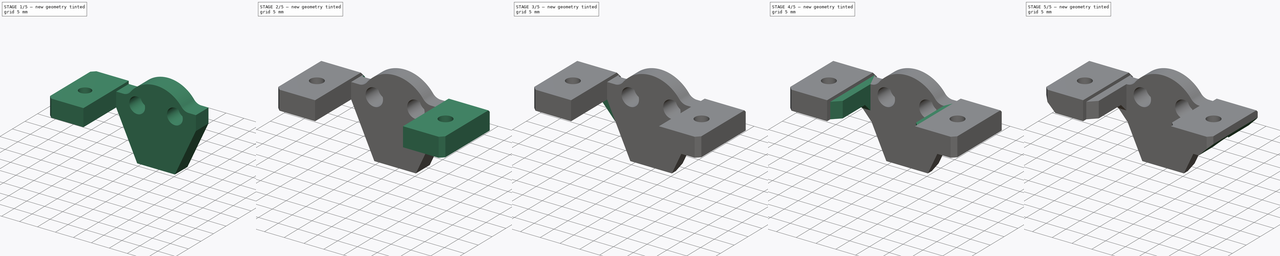
[diagram: build sequence overview — one tinted view per stage of 5, left to right]
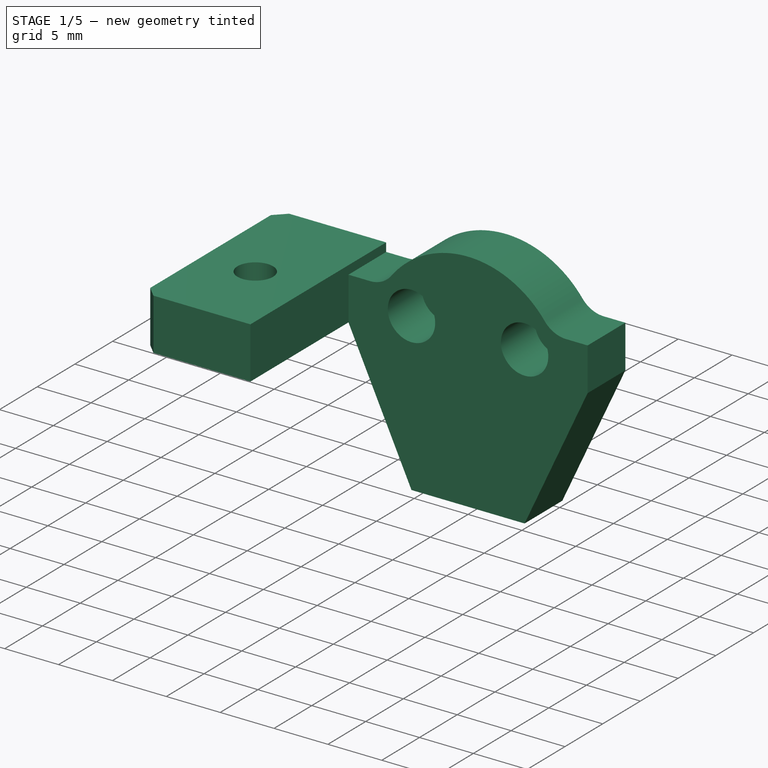
[diagram: stage 1 of 5 — iso view after this stage's code; geometry added in this stage tinted green]
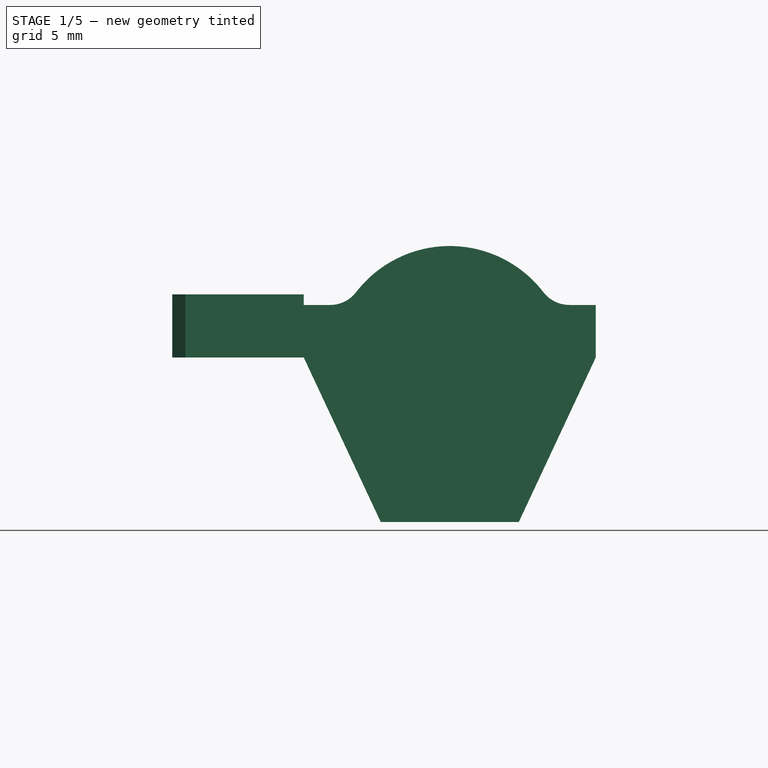
[diagram: stage 1 of 5 — front view after this stage's code; geometry added in this stage tinted green]
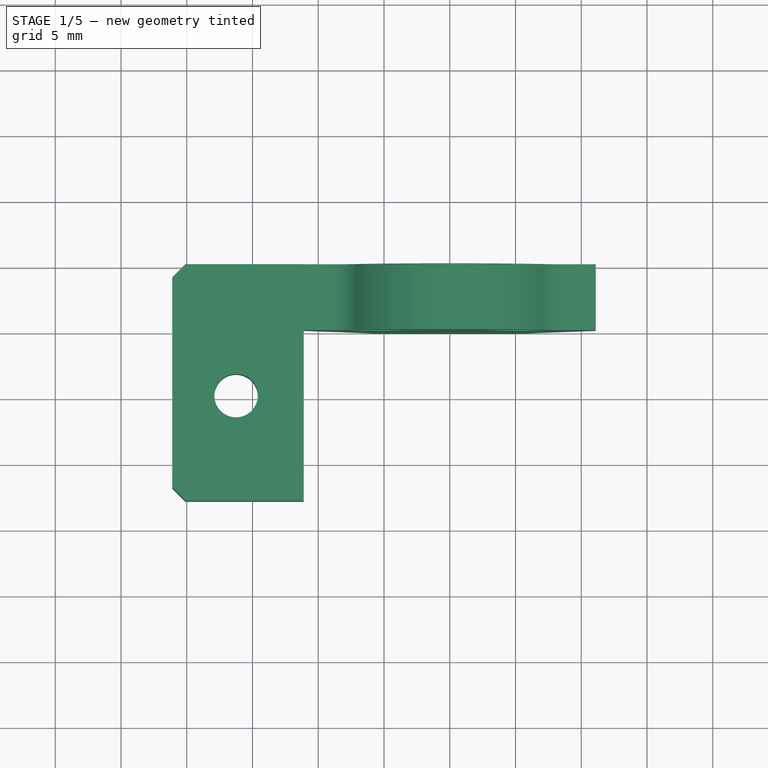
[diagram: stage 1 of 5 — top view after this stage's code; geometry added in this stage tinted green]
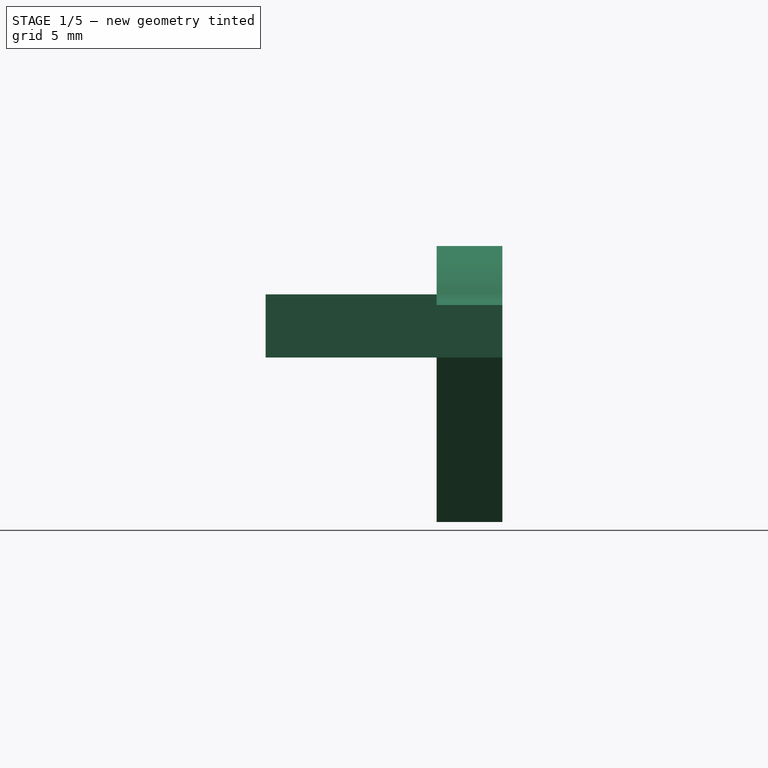
[diagram: stage 1 of 5 — right view after this stage's code; geometry added in this stage tinted green]
FCSTD DOCUMENT  (FreeCAD 0.21R33771 (Git))
Label: BTT-EDDY-Mount_for_XoL
License: All rights reserved
LicenseURL: https://en.wikipedia.org/wiki/All_rights_reserved
objects: Part::Feature×16, PartDesign::Chamfer×9, App::Part×5, Sketcher::SketchObject×5, PartDesign::Pad×3, PartDesign::Mirrored×3, PartDesign::Pocket×2, PartDesign::Body×1
note: 53 computed .brp shape members not serialized (recipe doc carries the construction recipe); baked Part::Feature solids carry a one-line shape summary decoded from their .brp

FEATURE [Part::Feature] Part__Feature034  label="btm"
  shape: bbox 14 x 1.587 x 14.2 mm, 14 faces, 0 solids (baked)
FEATURE [Part::Feature] Part__Feature340  label="connector"
  shape: bbox 9 x 7.046 x 3.859 mm, 103 faces, 0 solids (baked)
FEATURE [Part::Feature] Part__Feature818  label="housing"
  shape: bbox 18.1 x 33.79 x 18.3 mm, 1453 faces, 0 solids (baked)
FEATURE [App::Part] EDDY____________  label="BTT_Eddy-Probe"
  Group = -> [Part__Feature034,Part__Feature340,Part__Feature818]
  Origin = -> Origin
  Placement = pos=(74.38,3.82,19.7) rot=(-1,0,0;4.71239rad)
FEATURE [Part::Feature] Part__Feature841  label="Xol Carriage - Rear - MGN12H - 6MM"
  shape: bbox 45.28 x 17.22 x 50.76 mm, 524 faces (baked)
FEATURE [Part::Feature] Part__Feature843  label="Xol Carriage - Front - MGN12H - 6MM"
  Placement = pos=(0,10.04,0) rot=(0,0,1;0rad)
  shape: bbox 45.79 x 7.801 x 53.87 mm, 284 faces (baked)
FEATURE [Part::Feature] Part__Feature860  label="Dragon-Ace"
  Placement = pos=(-316.21,-16.48,-93.01) rot=(0,0.707107,-0.707107;3.14159rad)
  shape: bbox 61.95 x 45.95 x 49.98 mm, 715 faces (baked)
FEATURE [Part::Feature] Part__Feature863  label="heatsink"
  shape: bbox 22.31 x 22.31 x 26.4 mm, 387 faces (baked)
FEATURE [Part::Feature] Part__Feature864  label="block standoffs"
  shape: bbox 2.814 x 2.814 x 13.6 mm, 91 faces (baked)
FEATURE [Part::Feature] Part__Feature865  label="block standoffs001"
  shape: bbox 2.814 x 2.814 x 13.6 mm, 91 faces (baked)
FEATURE [Part::Feature] Part__Feature866  label="block standoffs002"
  shape: bbox 2.3 x 2.3 x 7.5 mm, 4 faces (baked)
FEATURE [Part::Feature] Part__Feature867  label="block standoffs003"
  shape: bbox 2.3 x 2.3 x 7.5 mm, 4 faces (baked)
FEATURE [Part::Feature] Part__Feature868  label="block standoffs004"
  shape: bbox 2.3 x 2.3 x 7.5 mm, 4 faces (baked)
FEATURE [Part::Feature] Part__Feature869  label="block standoffs005"
  shape: bbox 2.3 x 2.3 x 7.5 mm, 4 faces (baked)
FEATURE [App::Part] block_standoffs  label="block standoffs006"
  Group = -> [Part__Feature864,Part__Feature865,Part__Feature866,Part__Feature867,Part__Feature868,Part__Feature869]
  Origin = -> Origin002
FEATURE [Part::Feature] Part__Feature870  label="block"
  shape: bbox 23 x 16 x 12.14 mm, 80 faces (baked)
FEATURE [App::Part] block  label="block005"
  Group = -> [Part__Feature870]
  Origin = -> Origin003
FEATURE [Part::Feature] Part__Feature875  label="V6 Nozzle"
  Placement = pos=(-6.48856,0.0504844,83.56) rot=(-1,0,0;1.5708rad)
  shape: bbox 8.089 x 8.089 x 12.69 mm, 39 faces (baked)
FEATURE [Part::Feature] Part__Feature876  label="Heatbreak"
  shape: bbox 9 x 9 x 31.33 mm, 69 faces (baked)
FEATURE [App::Part] Heatbreak  label="Heatbreak003"
  Group = -> [Part__Feature876]
  Origin = -> Origin004
FEATURE [App::Part] Dragon_ST_v12  label="Dragon ST v12"
  Group = -> [Part__Feature863,block_standoffs,block,Part__Feature875,Heatbreak]
  Origin = -> Origin005
  Placement = pos=(-7.3e-15,-24.13,70.83) rot=(0.707107,0.707107,0;3.14159rad)
FEATURE [Sketcher::SketchObject] Sketch  label="side_sk"
  AttachmentOffset = pos=(0,0,14.3) rot=(0,0,1;0rad)
  FullyConstrained = true
  MapMode = 5
  Placement = pos=(0,0,14.3) rot=(0,0,1;0rad)
  Support = -> [XY_Plane006]
  sketch-geometry (7):
    g0: Circle CenterX=-16.25 CenterY=0 CenterZ=0 NormalX=0 NormalY=0 NormalZ=1 AngleXU=0 Radius=1.65
    g1: LineSegment StartX=-20.1 StartY=-8 StartZ=0 EndX=-11.1 EndY=-8 EndZ=0
    g2: LineSegment StartX=-11.1 StartY=-8 StartZ=0 EndX=-11.1 EndY=10 EndZ=0
    g3: LineSegment StartX=-11.1 StartY=10 StartZ=0 EndX=-20.1 EndY=10 EndZ=0
    g4: LineSegment StartX=-21.1 StartY=9 StartZ=0 EndX=-21.1 EndY=-7 EndZ=0
    g5: LineSegment StartX=-20.1 StartY=-8 StartZ=0 EndX=-21.1 EndY=-7 EndZ=0
    g6: LineSegment StartX=-21.1 StartY=9 StartZ=0 EndX=-20.1 EndY=10 EndZ=0
  constraints (21):
    c: Diameter(g0) = 3.3
    c: Coincident(g1,g2)
    c: Horizontal(g1)
    c: Horizontal(g3)
    c: Vertical(g4)
    c: DistanceY(g2,g2) = 18
    c: DistanceX(g0,g-1) = 16.25
    c: Perpendicular(g5,g6)
    c: Angle(g5,g-1) = 0.785398
    c: DistanceX(g5,g1) = 10
    c: Coincident(g1,g5)
    c: Coincident(g4,g5)
    c: Coincident(g4,g6)
    c: Coincident(g3,g6)
    c: Equal(g5,g6)
    c: Coincident(g3,g2)
    c: DistanceX(g2,g-1) = 11.1
    c: DistanceX(g4,g1) = 1
    c: PointOnObject(g0,g-1)
    c: Vertical(g2)
    c: DistanceY(g-1,g2) = 10
FEATURE [PartDesign::Pad] Pad  label="side_pd"
  Direction = (0,0,1)
  Length = 4.8
  Length2 = 10
  Profile = -> Sketch
  ReferenceAxis = -> Sketch [N_Axis]
  Reversed = true
  Type = 0
FEATURE [Sketcher::SketchObject] Sketch001  label="mid_sk"
  AttachmentOffset = pos=(0,0,-5) rot=(0,0,1;0rad)
  FullyConstrained = true
  MapMode = 5
  Placement = pos=(0,5,1.1e-15) rot=(1,0,0;1.5708rad)
  Support = -> [XZ_Plane006]
  sketch-geometry (10):
    g0: LineSegment StartX=-11.1 StartY=13.5 StartZ=0 EndX=-11.1 EndY=9.5 EndZ=0
    g1: LineSegment StartX=11.1 StartY=9.5 StartZ=0 EndX=11.1 EndY=13.5 EndZ=0
    g2: LineSegment StartX=11.1 StartY=13.5 StartZ=0 EndX=9.1 EndY=13.5 EndZ=0
    g3: LineSegment StartX=-11.1 StartY=13.5 StartZ=0 EndX=-9.1 EndY=13.5 EndZ=0
    g4: ArcOfCircle CenterX=2e-16 CenterY=9 CenterZ=0 NormalX=0 NormalY=0 NormalZ=1 AngleXU=0 Radius=8.98085 StartAngle=0.655696 EndAngle=2.4859
    g5: ArcOfCircle CenterX=9.1 CenterY=16 CenterZ=0 NormalX=0 NormalY=0 NormalZ=1 AngleXU=0 Radius=2.5 StartAngle=3.79729 EndAngle=4.71239
    g6: ArcOfCircle CenterX=-9.1 CenterY=16 CenterZ=0 NormalX=0 NormalY=0 NormalZ=1 AngleXU=0 Radius=2.5 StartAngle=4.71239 EndAngle=5.62749
    g7: LineSegment StartX=11.1 StartY=9.5 StartZ=0 EndX=5.25 EndY=-3 EndZ=0
    g8: LineSegment StartX=-11.1 StartY=9.5 StartZ=0 EndX=-5.25 EndY=-3 EndZ=0
    g9: LineSegment StartX=5.25 StartY=-3 StartZ=0 EndX=-5.25 EndY=-3 EndZ=0
  constraints (25):
    c: Symmetric(g0,g1,g-2)
    c: Coincident(g2,g1)
    c: Horizontal(g2)
    c: Coincident(g3,g0)
    c: Horizontal(g3)
    c: Tangent(g4,g5) = 1.5708
    c: Tangent(g2,g5) = 1.5708
    c: Tangent(g4,g6) = 1.5708
    c: Tangent(g3,g6) = -1.5708
    c: Symmetric(g4,g4,g-2)
    c: DistanceX(g0,g-1) = 11.1
    c: DistanceX(g3,g3) = 2
    c: Diameter(g6) = 5
    c: DistanceY(g-1,g0) = 13.5
    c: DistanceY(g-1,g4) = 9
    c: Symmetric(g1,g0,g-2)
    c: Vertical(g1)
    c: Coincident(g7,g1)
    c: Coincident(g8,g0)
    c: Symmetric(g8,g7,g-2)
    c: Coincident(g9,g7)
    c: Coincident(g9,g8)
    c: DistanceY(g8,g-1) = 3
    c: DistanceX(g9,g9) = 10.5
    c: DistanceY(g1,g1) = 4
FEATURE [PartDesign::Pad] Pad001  label="mid_pd"
  BaseFeature = -> Pad
  Direction = (0,-1,2e-16)
  Length = 5
  Length2 = 10
  Profile = -> Sketch001
  ReferenceAxis = -> Sketch001 [N_Axis]
  Reversed = true
  Type = 0
FEATURE [Sketcher::SketchObject] Sketch002
  AttachmentOffset = pos=(0,0,-5) rot=(0,0,1;0rad)
  FullyConstrained = true
  MapMode = 5
  Placement = pos=(0,5,1.1e-15) rot=(1,0,0;1.5708rad)
  Support = -> [XZ_Plane006]
  sketch-geometry (2):
    g0: Circle CenterX=-5.25 CenterY=11.6 CenterZ=0 NormalX=0 NormalY=0 NormalZ=1 AngleXU=0 Radius=2.2
    g1: Circle CenterX=5.25 CenterY=11.6 CenterZ=0 NormalX=0 NormalY=0 NormalZ=1 AngleXU=0 Radius=2.2
  constraints (5):
    c: Symmetric(g1,g0,g-2)
    c: DistanceX(g0,g1) = 10.5
    c: Equal(g0,g1)
    c: Diameter(g0) = 4.4
    c: DistanceY(g-1,g1) = 11.6
FEATURE [PartDesign::Pocket] Pocket
  BaseFeature = -> Pad001
  Direction = (0,1,2e-16)
  Length = 4.5
  Length2 = 5
  Profile = -> Sketch002
  ReferenceAxis = -> Sketch002 [N_Axis]
  Type = 0
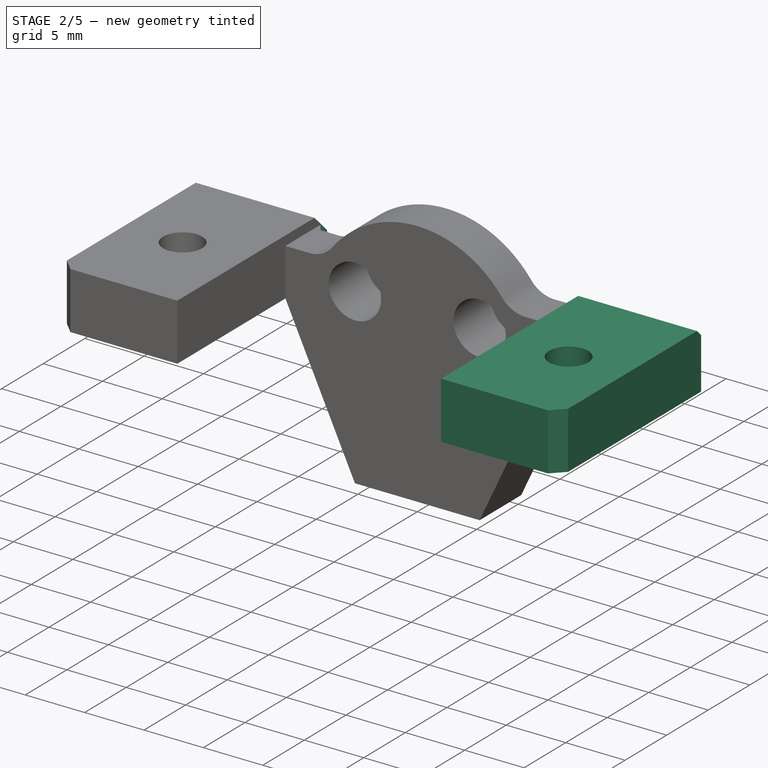
[diagram: stage 2 of 5 — iso view after this stage's code; geometry added in this stage tinted green]
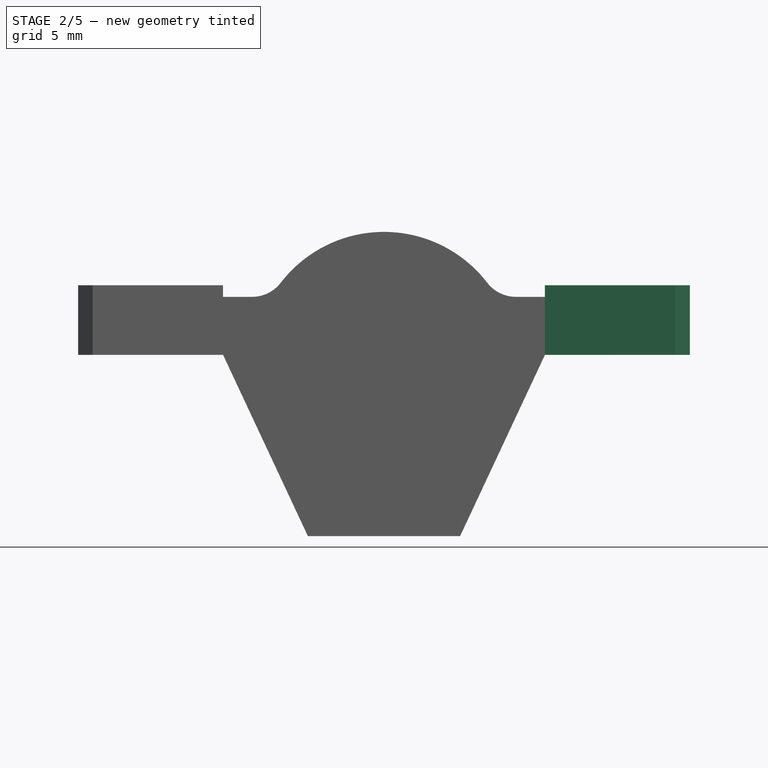
[diagram: stage 2 of 5 — front view after this stage's code; geometry added in this stage tinted green]
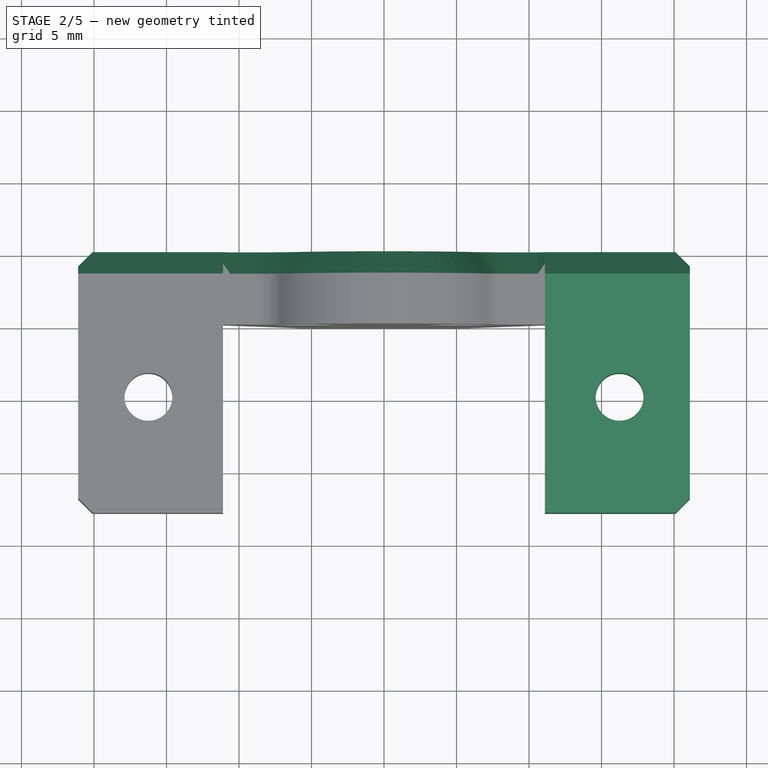
[diagram: stage 2 of 5 — top view after this stage's code; geometry added in this stage tinted green]
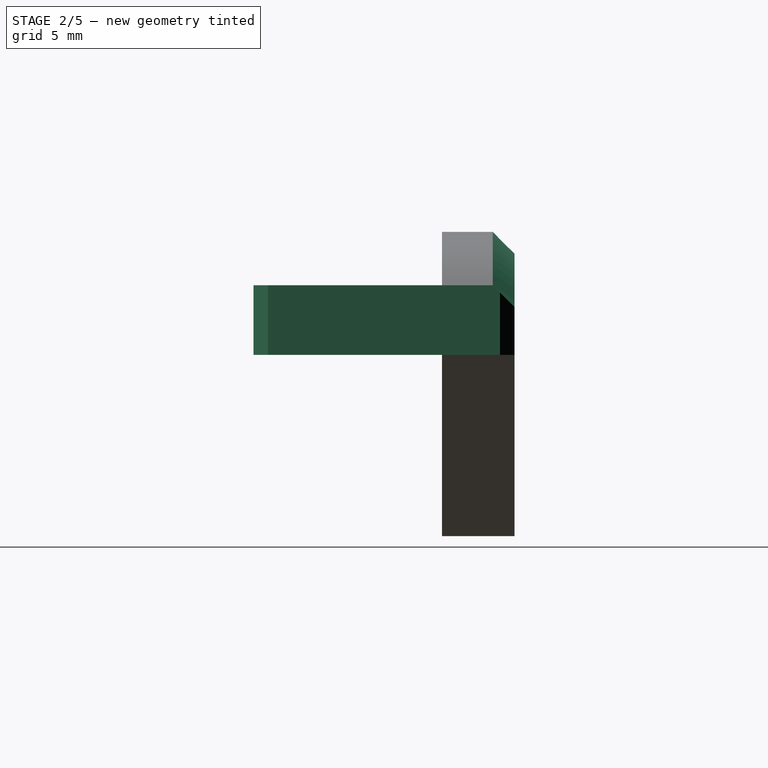
[diagram: stage 2 of 5 — right view after this stage's code; geometry added in this stage tinted green]
FEATURE [PartDesign::Mirrored] Mirrored
  BaseFeature = -> Pocket
  MirrorPlane = -> Sketch [V_Axis]
  Originals = -> [Pad]
FEATURE [PartDesign::Chamfer] Chamfer
  Angle = 45
  Base = -> Mirrored [Edge35]
  BaseFeature = -> Mirrored
  ChamferType = 0
  FlipDirection = false
  Size = 1.5
  Size2 = 1
  SupportTransform = false
  UseAllEdges = false
FEATURE [PartDesign::Chamfer] Chamfer001
  Angle = 45
  Base = -> Chamfer [Edge72,Edge41]
  BaseFeature = -> Chamfer
  ChamferType = 0
  FlipDirection = false
  Size = 1.5
  Size2 = 1
  SupportTransform = false
  UseAllEdges = false
FEATURE [PartDesign::Chamfer] Chamfer002
  Angle = 45
  Base = -> Chamfer001 [Edge3,Edge64]
  BaseFeature = -> Chamfer001
  ChamferType = 0
  FlipDirection = false
  Size = 0.5
  Size2 = 1
  SupportTransform = false
  UseAllEdges = false
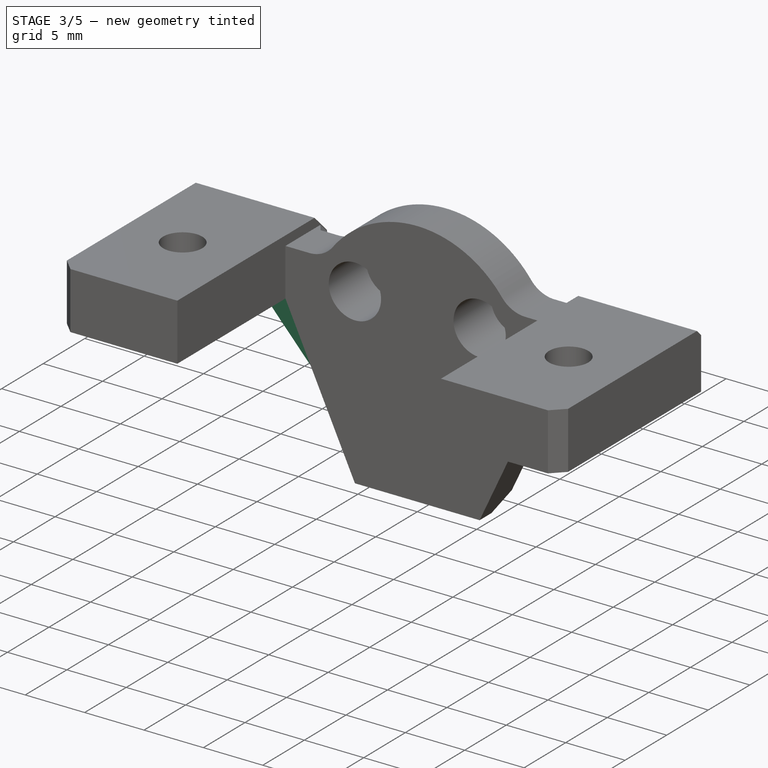
[diagram: stage 3 of 5 — iso view after this stage's code; geometry added in this stage tinted green]
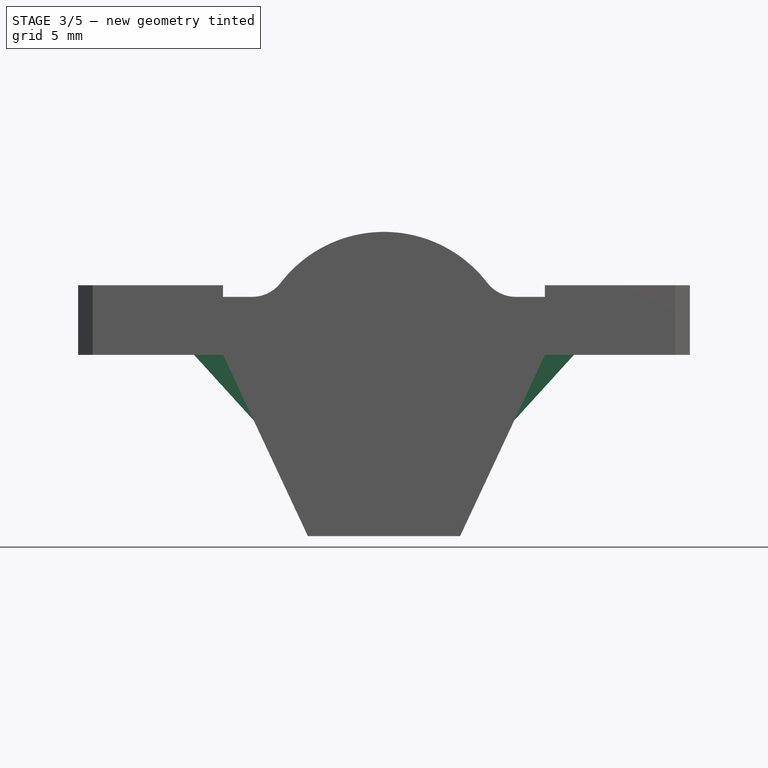
[diagram: stage 3 of 5 — front view after this stage's code; geometry added in this stage tinted green]
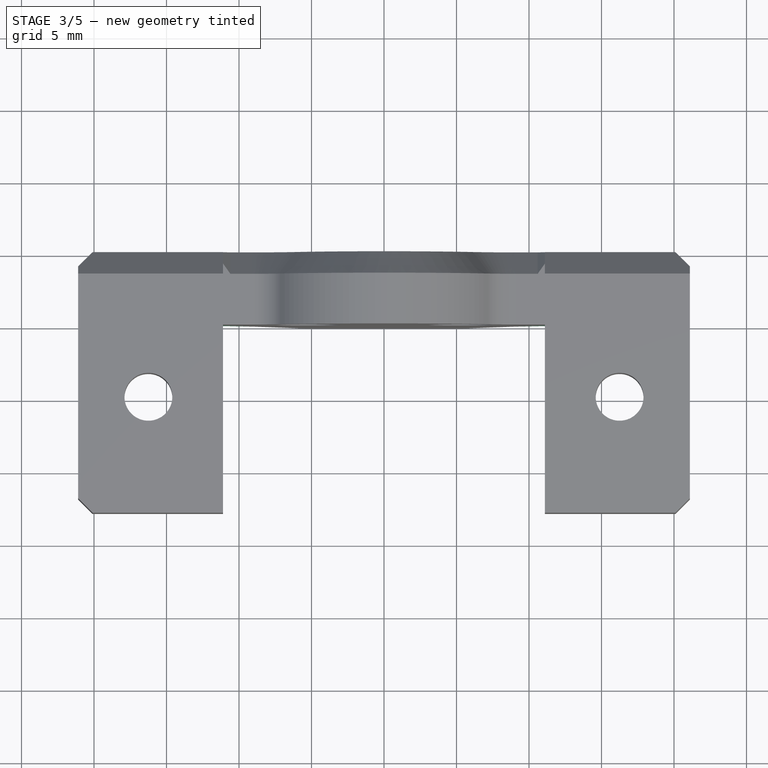
[diagram: stage 3 of 5 — top view after this stage's code; geometry added in this stage tinted green]
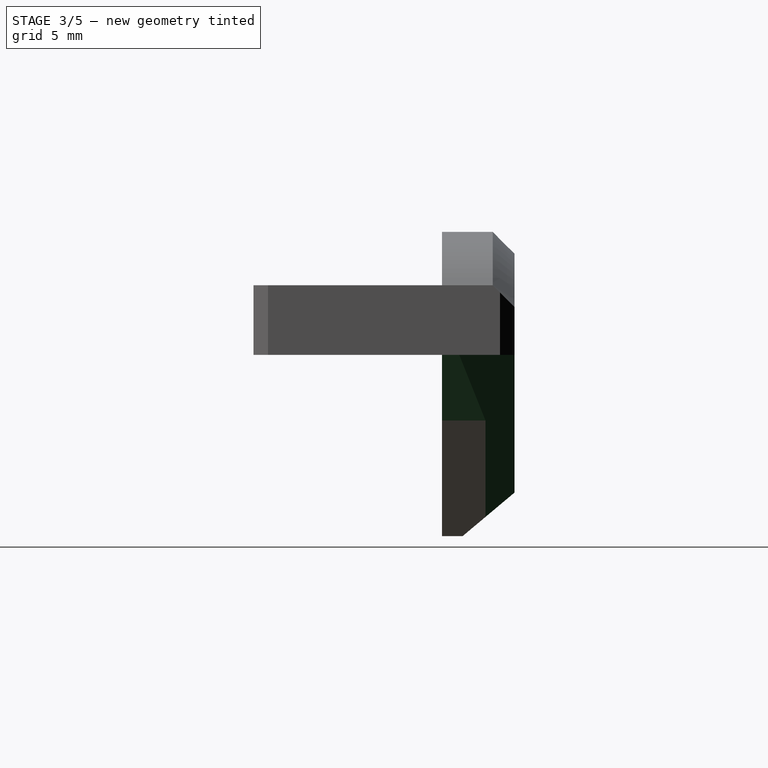
[diagram: stage 3 of 5 — right view after this stage's code; geometry added in this stage tinted green]
FEATURE [PartDesign::Chamfer] Chamfer003
  Angle = 45
  Base = -> Chamfer002 [Edge53,Edge49]
  BaseFeature = -> Chamfer002
  ChamferType = 0
  FlipDirection = false
  Size = 2
  Size2 = 1
  SupportTransform = false
  UseAllEdges = false
FEATURE [PartDesign::Chamfer] Chamfer004
  Angle = 50
  Base = -> Chamfer003 [Edge25]
  BaseFeature = -> Chamfer003
  ChamferType = 2
  FlipDirection = false
  Size = 3
  Size2 = 1
  SupportTransform = false
  UseAllEdges = false
FEATURE [PartDesign::Chamfer] Chamfer005
  Angle = 45
  Base = -> Chamfer004 [Edge48,Edge3]
  BaseFeature = -> Chamfer004
  ChamferType = 1
  FlipDirection = false
  Size = 5
  Size2 = 2
  SupportTransform = false
  UseAllEdges = false
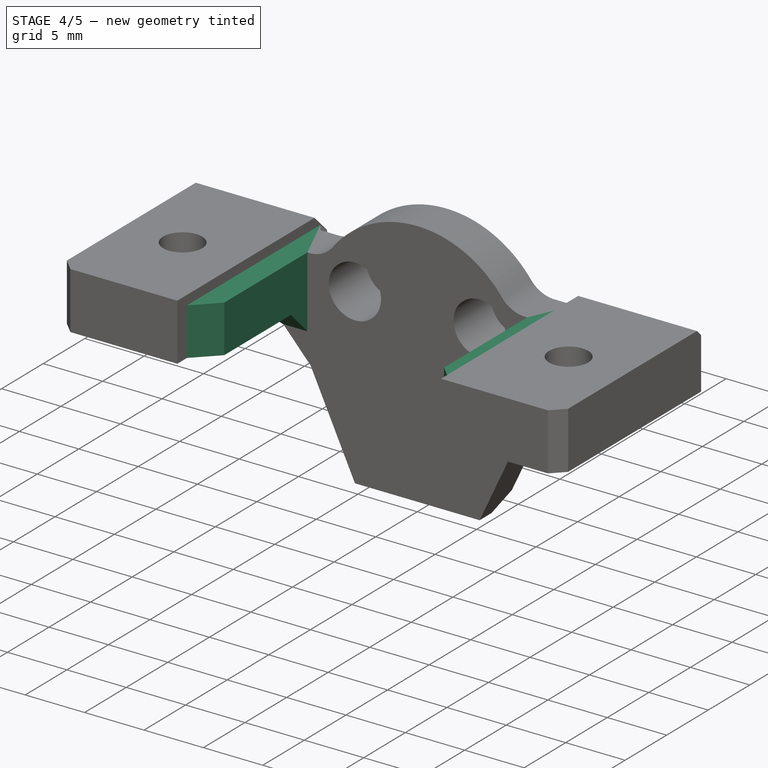
[diagram: stage 4 of 5 — iso view after this stage's code; geometry added in this stage tinted green]
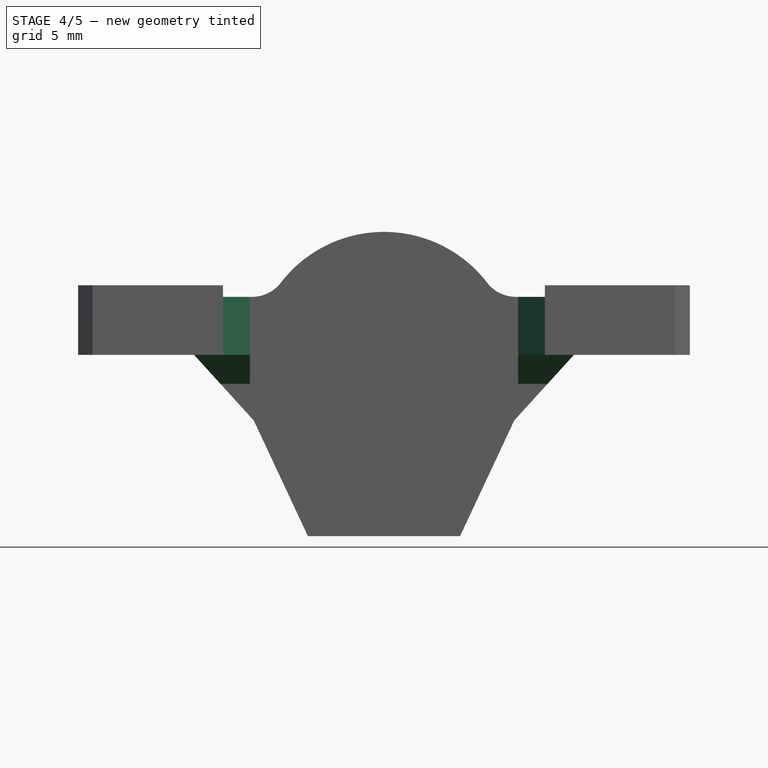
[diagram: stage 4 of 5 — front view after this stage's code; geometry added in this stage tinted green]
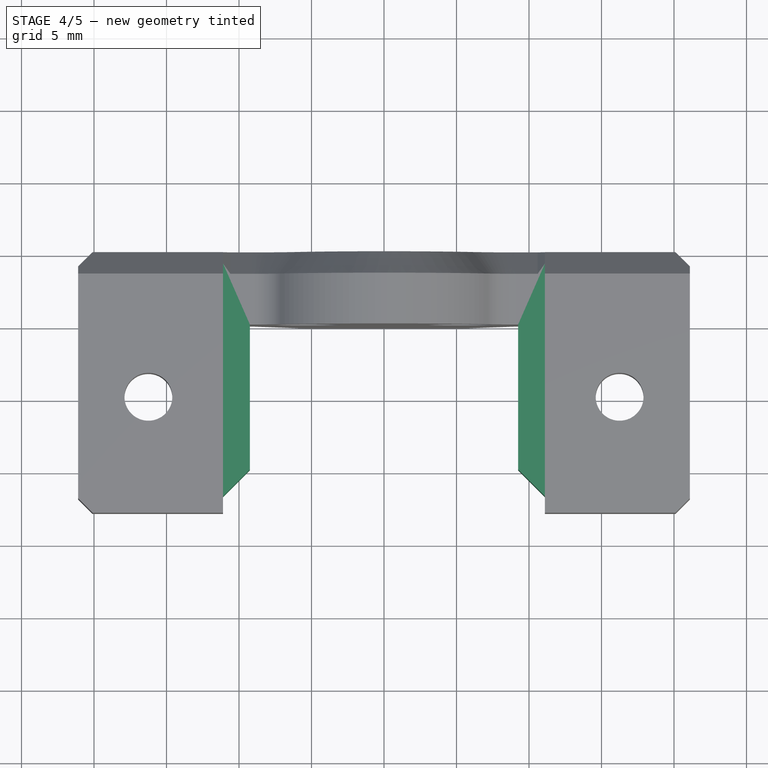
[diagram: stage 4 of 5 — top view after this stage's code; geometry added in this stage tinted green]
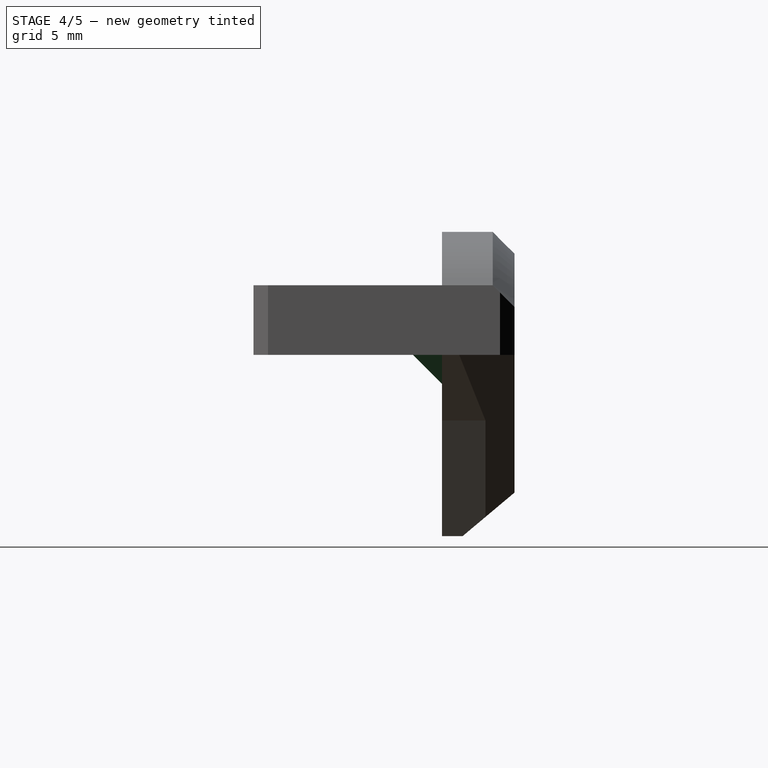
[diagram: stage 4 of 5 — right view after this stage's code; geometry added in this stage tinted green]
FEATURE [Sketcher::SketchObject] Sketch003
  AttachmentOffset = pos=(0,0,-5) rot=(0,0,1;0rad)
  FullyConstrained = true
  MapMode = 5
  Placement = pos=(0,5,1.1e-15) rot=(1,0,0;1.5708rad)
  Support = -> [XZ_Plane006]
  expr: Constraints[9] = 18.5 / 2
  sketch-geometry (4):
    g0: LineSegment StartX=-11.25 StartY=13.5 StartZ=0 EndX=-9.25 EndY=13.5 EndZ=0
    g1: LineSegment StartX=-9.25 StartY=13.5 StartZ=0 EndX=-9.25 EndY=9.5 EndZ=0
    g2: LineSegment StartX=-9.25 StartY=9.5 StartZ=0 EndX=-11.25 EndY=9.5 EndZ=0
    g3: LineSegment StartX=-11.25 StartY=9.5 StartZ=0 EndX=-11.25 EndY=13.5 EndZ=0
  constraints (12):
    c: Coincident(g0,g1)
    c: Coincident(g1,g2)
    c: Coincident(g2,g3)
    c: Coincident(g3,g0)
    c: Horizontal(g0)
    c: Horizontal(g2)
    c: Vertical(g1)
    c: Vertical(g3)
    c: DistanceY(g-1,g0) = 13.5
    c: DistanceX(g0,g-1) = 9.25
    c: DistanceY(g1,g1) = 4
    c: DistanceX(g2,g2) = 2
FEATURE [PartDesign::Pad] Pad002
  BaseFeature = -> Chamfer005
  Direction = (0,-1,-2e-16)
  Length = 10
  Length2 = 10
  Profile = -> Sketch003
  ReferenceAxis = -> Sketch003 [N_Axis]
  Type = 0
FEATURE [PartDesign::Chamfer] Chamfer006
  Angle = 45
  Base = -> Pad002 [Edge102]
  BaseFeature = -> Pad002
  ChamferType = 0
  FlipDirection = false
  Size = 1.849
  Size2 = 1
  SupportTransform = false
  UseAllEdges = false
FEATURE [PartDesign::Mirrored] Mirrored001
  BaseFeature = -> Chamfer006
  MirrorPlane = -> YZ_Plane006
  Originals = -> [Chamfer006,Pad002]
  Refine = true
FEATURE [PartDesign::Chamfer] Chamfer007
  Angle = 45
  Base = -> Mirrored001 [Edge34,Edge26]
  BaseFeature = -> Mirrored001
  ChamferType = 0
  FlipDirection = false
  Size = 2
  Size2 = 1
  SupportTransform = false
  UseAllEdges = false
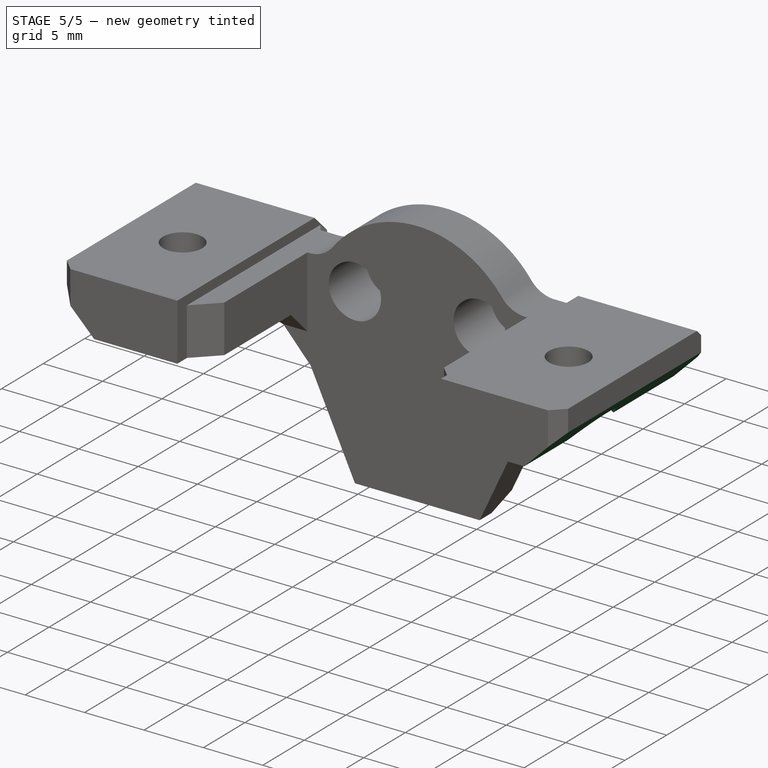
[diagram: stage 5 of 5 — iso view after this stage's code; geometry added in this stage tinted green]
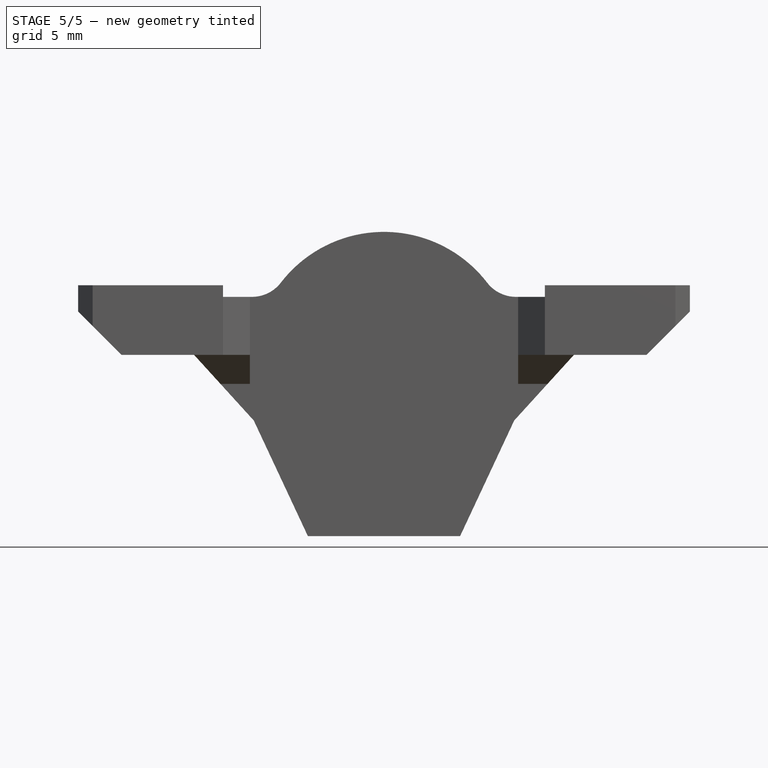
[diagram: stage 5 of 5 — front view after this stage's code; geometry added in this stage tinted green]
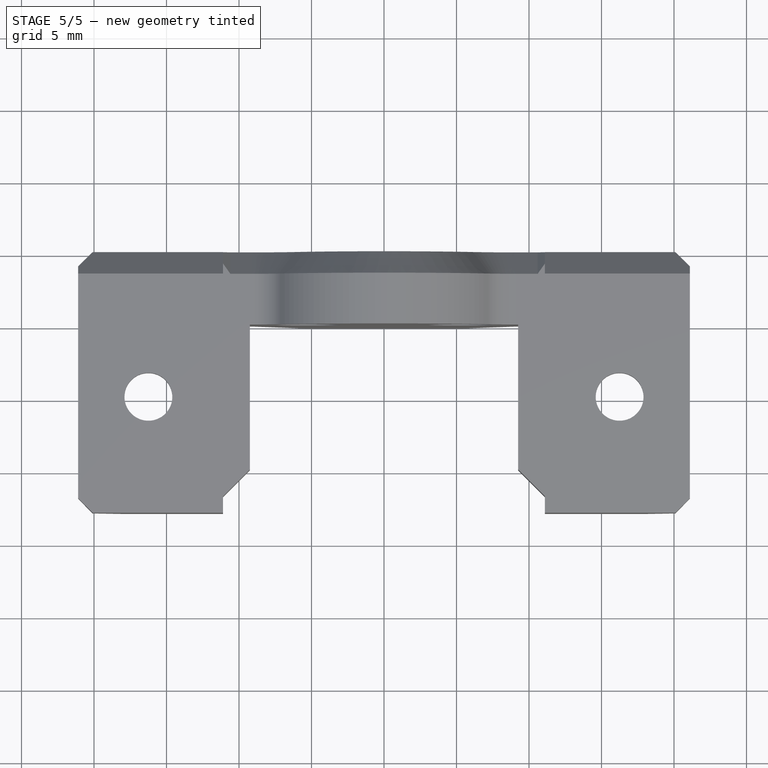
[diagram: stage 5 of 5 — top view after this stage's code; geometry added in this stage tinted green]
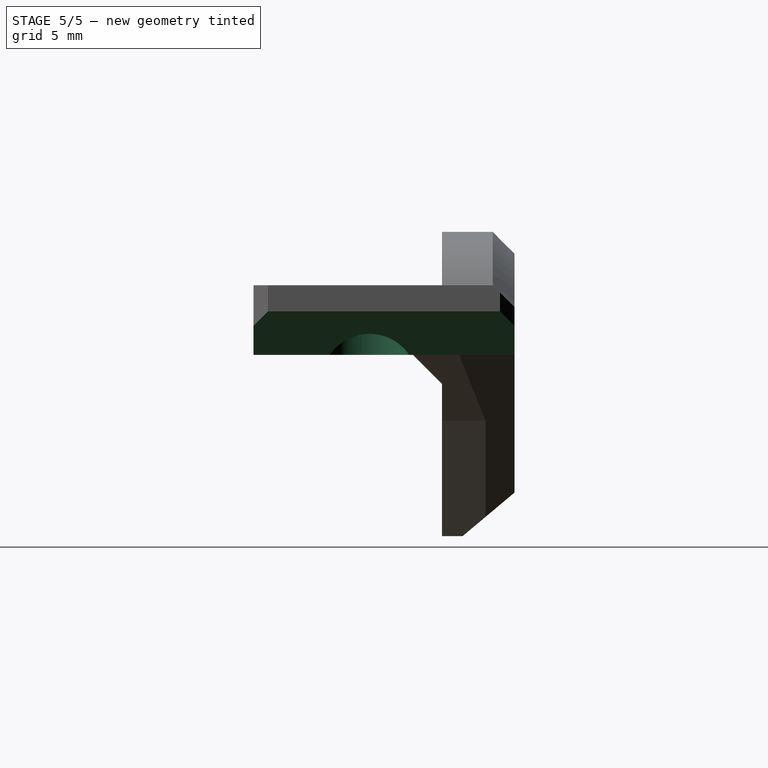
[diagram: stage 5 of 5 — right view after this stage's code; geometry added in this stage tinted green]
FEATURE [PartDesign::Chamfer] Chamfer008
  Angle = 45
  Base = -> Chamfer007 [Edge101,Edge75]
  BaseFeature = -> Chamfer007
  ChamferType = 0
  FlipDirection = false
  Size = 3
  Size2 = 1
  SupportTransform = false
  UseAllEdges = false
FEATURE [Sketcher::SketchObject] Sketch004
  FullyConstrained = true
  MapMode = 5
  Placement = pos=(-1.9e-15,-1.2e-15,9.5) rot=(1,0,0;3.14159rad)
  Support = -> [Chamfer008]
  sketch-geometry (3):
    g0: ArcOfCircle CenterX=-16.25 CenterY=0 CenterZ=0 NormalX=0 NormalY=0 NormalZ=1 AngleXU=0 Radius=3.3 StartAngle=2.26893 EndAngle=7.15585
    g1: LineSegment StartX=-18.3712 StartY=2.52795 StartZ=0 EndX=-16.25 EndY=4.30784 EndZ=0
    g2: LineSegment StartX=-16.25 StartY=4.30784 StartZ=0 EndX=-14.1288 EndY=2.52795 EndZ=0
  constraints (8):
    c: PointOnObject(g0,g-1)
    c: DistanceX(g0,g-1) = 16.25
    c: Diameter(g0) = 6.6
    c: Coincident(g1,g2)
    c: Vertical(g1,g0)
    c: Angle(g-1,g1) = 0.698132
    c: Tangent(g0,g2) = 1.5708
    c: Tangent(g0,g1) = 1.5708
FEATURE [PartDesign::Pocket] Pocket001
  BaseFeature = -> Chamfer008
  Direction = (-2e-16,-1e-16,1)
  Length = 3
  Length2 = 5
  Profile = -> Sketch004
  ReferenceAxis = -> Sketch004 [N_Axis]
  Type = 0
FEATURE [PartDesign::Mirrored] Mirrored002
  BaseFeature = -> Pocket001
  MirrorPlane = -> Sketch004 [V_Axis]
  Originals = -> [Pocket001]
FEATURE [PartDesign::Body] Body  label="Eddy_Mount"
  Group = -> [Sketch,Pad,Sketch001,Pad001,Sketch002,Pocket,Mirrored,Chamfer,Chamfer001,Chamfer002,Chamfer003,Chamfer004,Chamfer005,Sketch003,Pad002,Chamfer006,Mirrored001,Chamfer007,Chamfer008,Sketch004,Pocket001,Mirrored002]
  Origin = -> Origin006
  Tip = -> Mirrored002
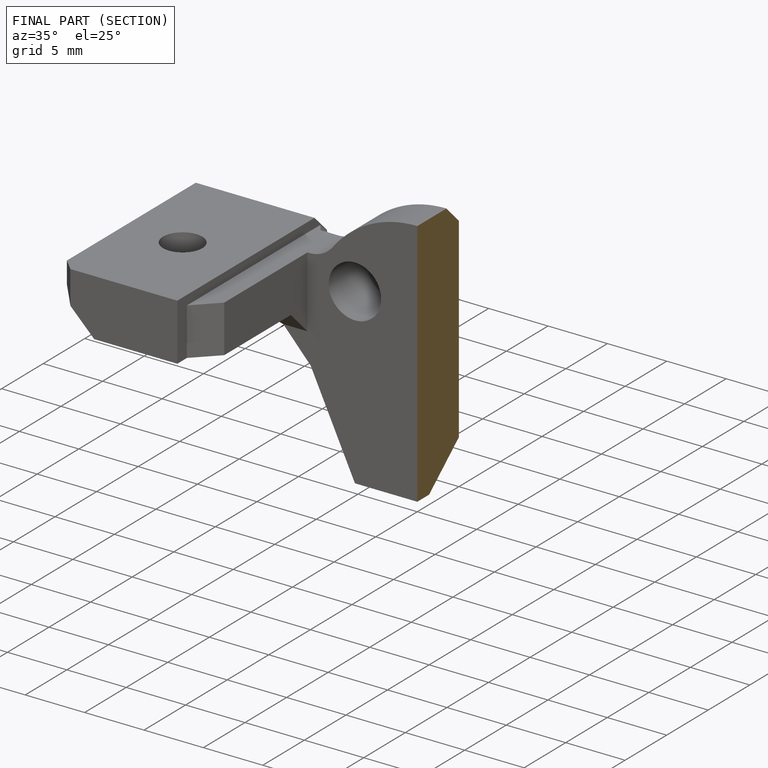
[diagram: finished part — half-section view (interior)]
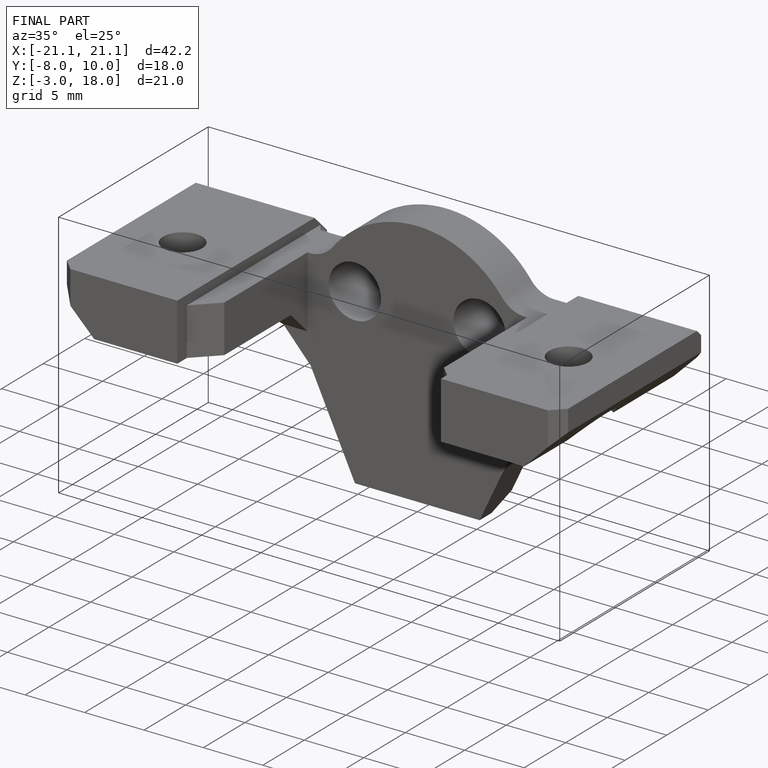
[diagram: finished part — iso view with bounding-box wireframe]
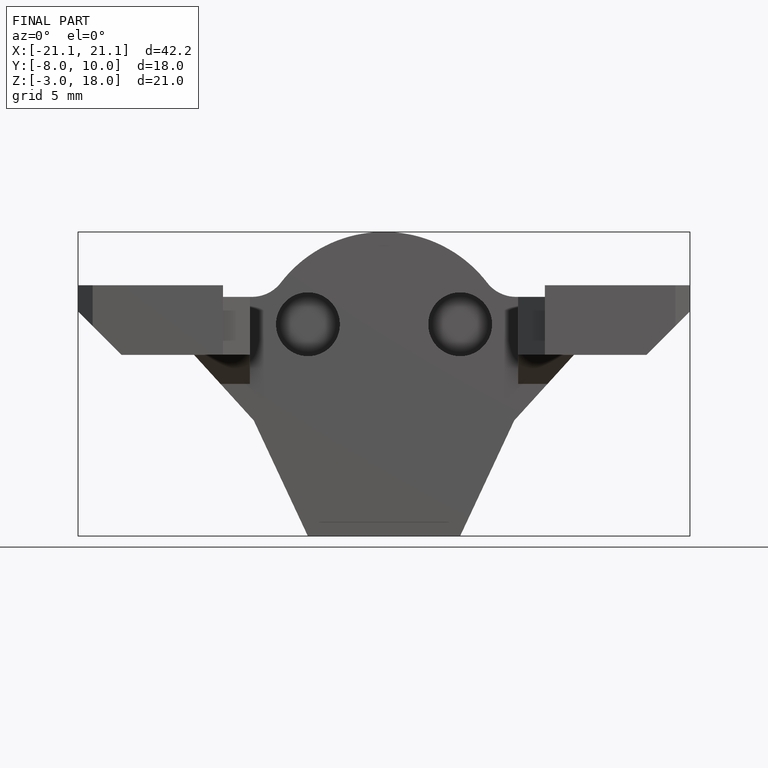
[diagram: finished part — front view with bounding-box wireframe]
